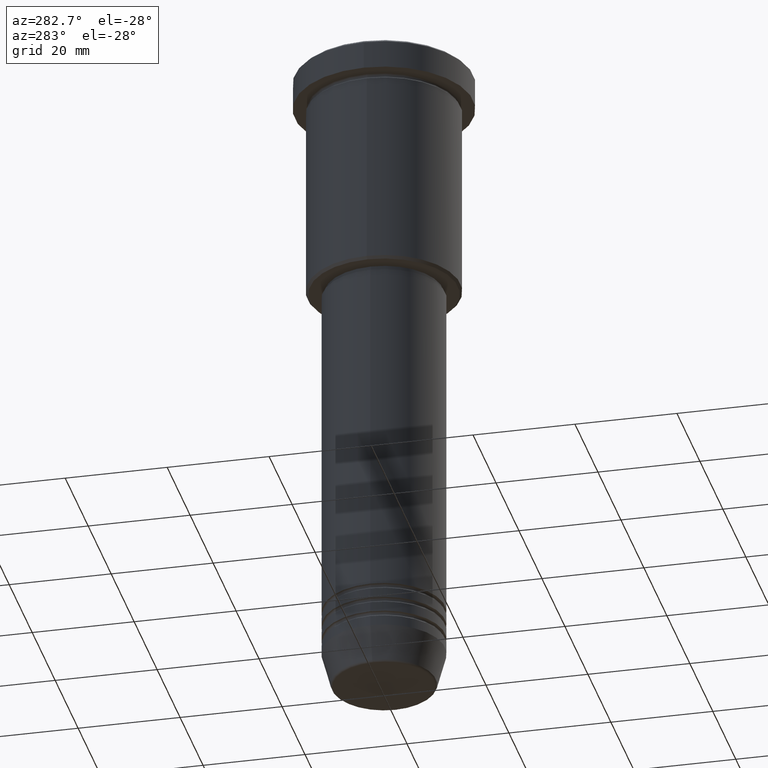
[diagram: clean part render]
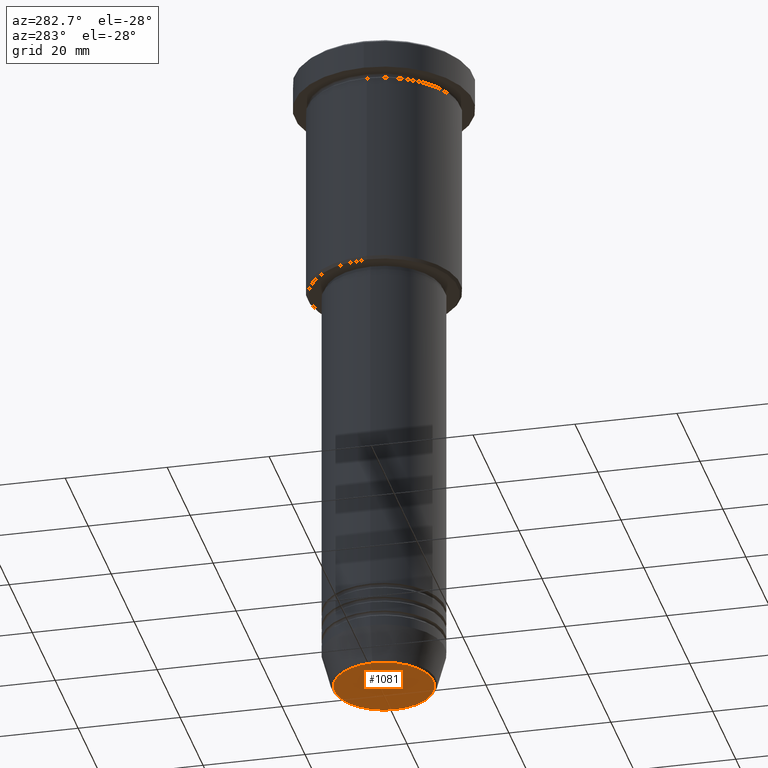
[diagram: same view with one face highlighted and labeled with its STEP entity id]
A machine part, auxiliary view. The second image highlights one B-rep face of the part: STEP entity #1081.
In plain terms, the highlighted planar face has unit normal (0, -0, 1).
Its self-contained STEP definition (entity closure, byte-faithful):
#5 = ORIENTED_EDGE ( 'NONE', *, *, #741, .T. ) ;
#79 = FACE_OUTER_BOUND ( 'NONE', #530, .T. ) ;
#170 = CIRCLE ( 'NONE', #608, 9.740692158992654726 ) ;
#192 = CARTESIAN_POINT ( 'NONE',  ( 9.740692158992654726, 0.000000000000000000, -131.0000000000000000 ) ) ;
#234 = CIRCLE ( 'NONE', #367, 9.740692158992654726 ) ;
#266 = DIRECTION ( 'NONE',  ( 1.000000000000000000, 0.000000000000000000, 0.000000000000000000 ) ) ;
#342 = ORIENTED_EDGE ( 'NONE', *, *, #531, .T. ) ;
#358 = CARTESIAN_POINT ( 'NONE',  ( 0.000000000000000000, 0.000000000000000000, -131.0000000000000000 ) ) ;
#367 = AXIS2_PLACEMENT_3D ( 'NONE', #915, #543, #541 ) ;
#530 = EDGE_LOOP ( 'NONE', ( #5, #342 ) ) ;
#531 = EDGE_CURVE ( 'NONE', #1137, #1040, #234, .T. ) ;
#541 = DIRECTION ( 'NONE',  ( 1.000000000000000000, 0.000000000000000000, 0.000000000000000000 ) ) ;
#543 = DIRECTION ( 'NONE',  ( 0.000000000000000000, 0.000000000000000000, -1.000000000000000000 ) ) ;
#608 = AXIS2_PLACEMENT_3D ( 'NONE', #837, #1032, #854 ) ;
#718 = DIRECTION ( 'NONE',  ( 0.000000000000000000, -0.000000000000000000, 1.000000000000000000 ) ) ;
#741 = EDGE_CURVE ( 'NONE', #1040, #1137, #170, .T. ) ;
#784 = AXIS2_PLACEMENT_3D ( 'NONE', #358, #718, #266 ) ;
#837 = CARTESIAN_POINT ( 'NONE',  ( 0.000000000000000000, 0.000000000000000000, -131.0000000000000000 ) ) ;
#854 = DIRECTION ( 'NONE',  ( 1.000000000000000000, 0.000000000000000000, 0.000000000000000000 ) ) ;
#915 = CARTESIAN_POINT ( 'NONE',  ( 0.000000000000000000, 0.000000000000000000, -131.0000000000000000 ) ) ;
#1032 = DIRECTION ( 'NONE',  ( 0.000000000000000000, 0.000000000000000000, -1.000000000000000000 ) ) ;
#1036 = CARTESIAN_POINT ( 'NONE',  ( -9.740692158992654726, 1.222463696683474604E-15, -131.0000000000000000 ) ) ;
#1040 = VERTEX_POINT ( 'NONE', #192 ) ;
#1081 = ADVANCED_FACE ( 'NONE', ( #79 ), #1174, .F. ) ;
#1137 = VERTEX_POINT ( 'NONE', #1036 ) ;
#1174 = PLANE ( 'NONE',  #784 ) ;